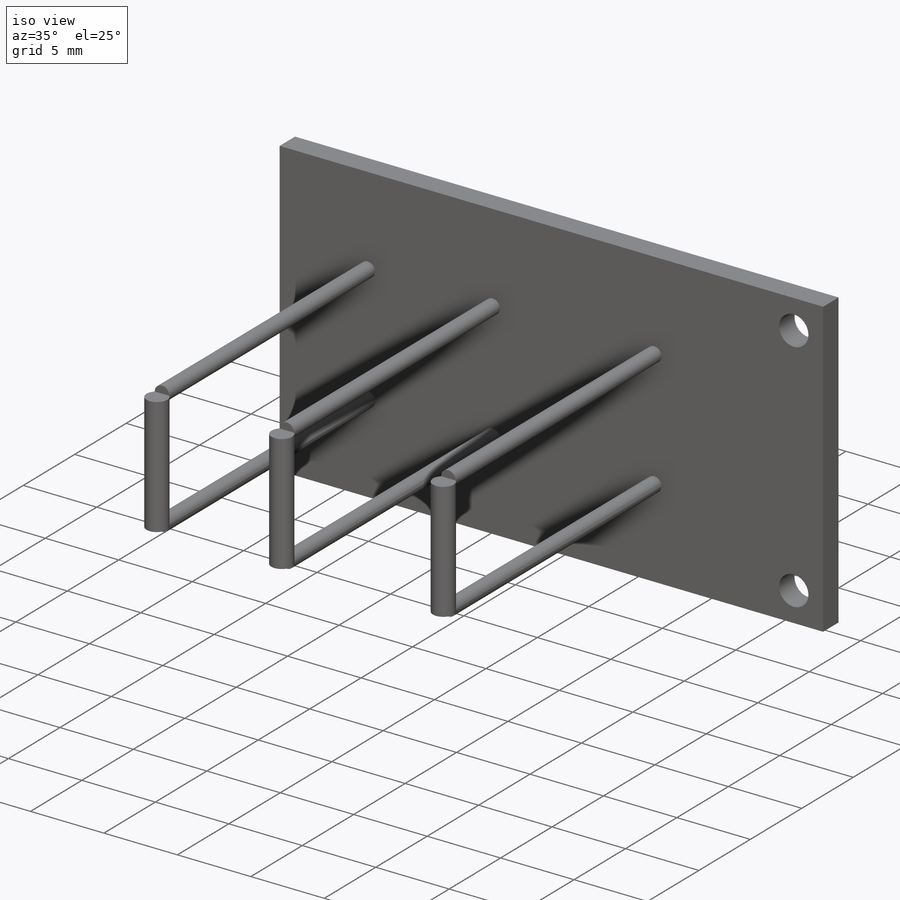
[diagram: iso view]
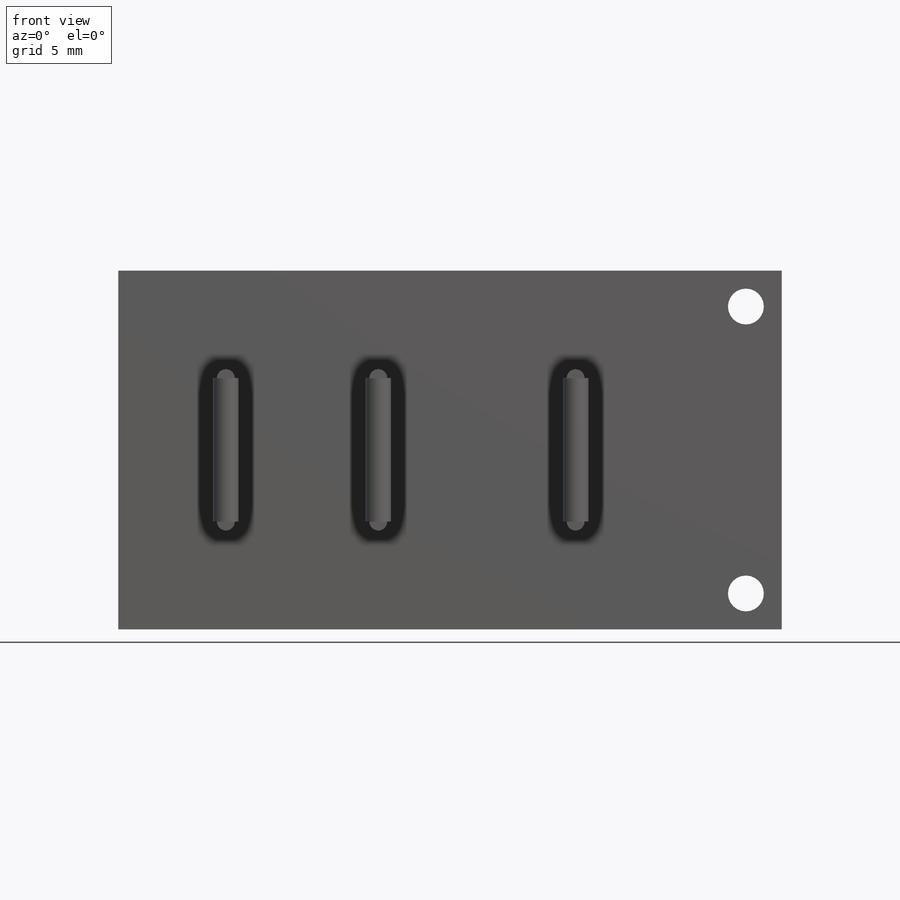
[diagram: front view]
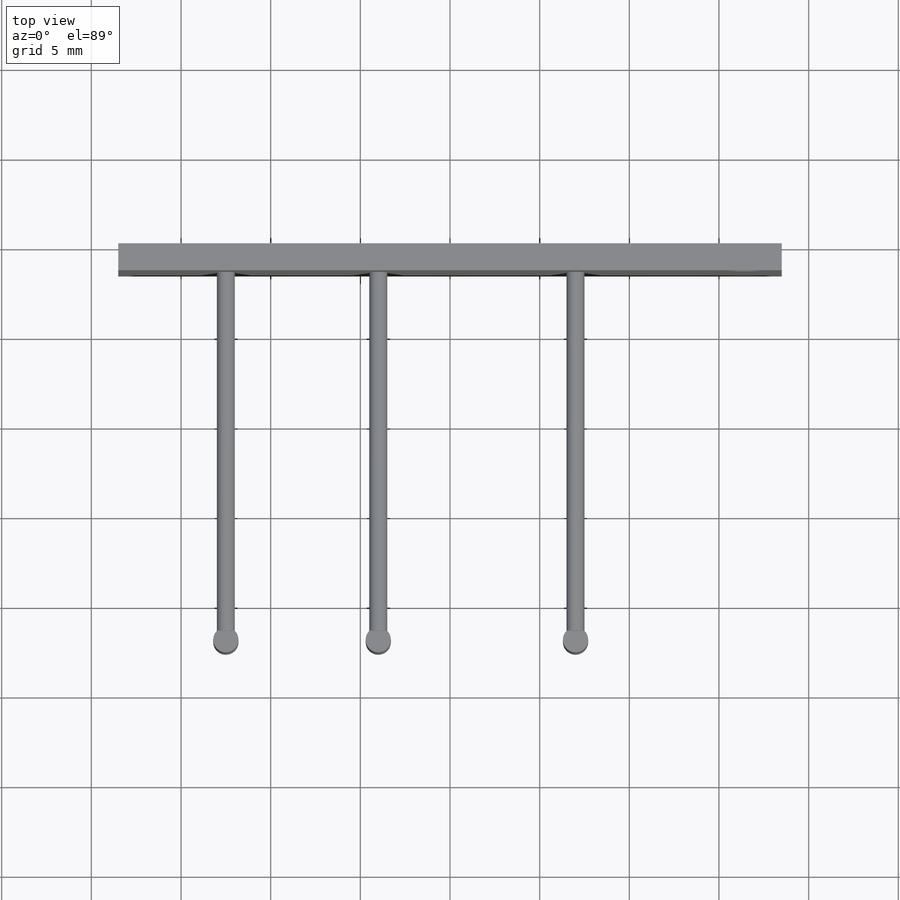
[diagram: top view]
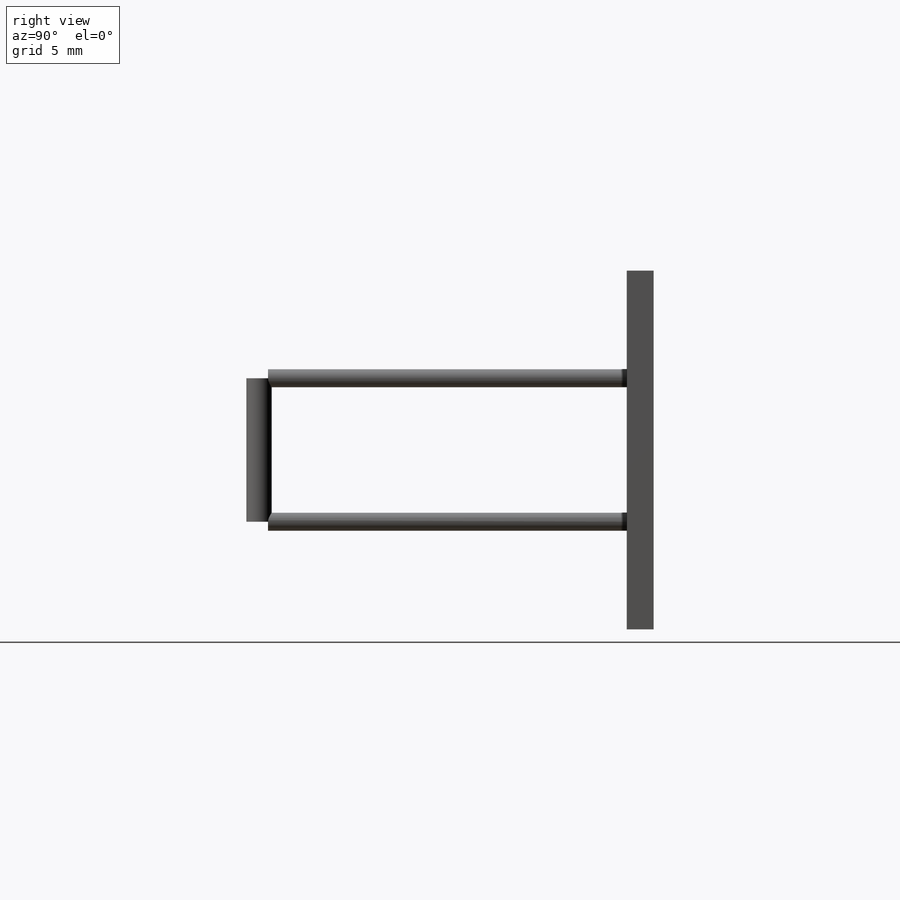
[diagram: right view]
SOLIDWORKS PART (.sldprt)
format: sldprt  version: not decoded by parser v0  size: 242,176 bytes
history: native  units: mm
features: sketch x5, extrude x4, plane x3, material x1, cut_extrude x1 (+9 scaffold rows collapsed)
feature tree (23):
  scaffold x9  (default folders/planes/origin — collapsed)
  material  "Material <não especificado>"
  plane  "Plano frontal"
  plane  "Plano superior"
  plane  "Plano direito"
  sketch  "Esboço1"  dims[D1=20.0mm D2=37.0mm]
  extrude  "Ressalto-extrusão1"  Depth=1.5mm
  sketch  "Esboço2"  dims[D4=2.0mm D5=2.0mm D1=8.0mm D2=8.0mm D3=2.0mm]
  cut_extrude  "Corte-extrusão1"  [1 undecoded]
  sketch  "Esboço3"  dims[D6=1.0mm D1=6.0mm D2=8.5mm D3=11.0mm D4=4.0mm D5=4.0mm]
  extrude  "Ressalto-extrusão2"  Depth=20mm
  sketch  "Esboço4"
  extrude  "Ressalto-extrusão3"  Depth=1mm
  sketch  "Esboço5"
  extrude  "Ressalto-extrusão4"  [1 undecoded]
decode coverage: 6 of 10 modeling features carry decoded parameters
note: 2 parameter values undecoded
note: suppression state not decoded; provenance and decode notes live in map.json
